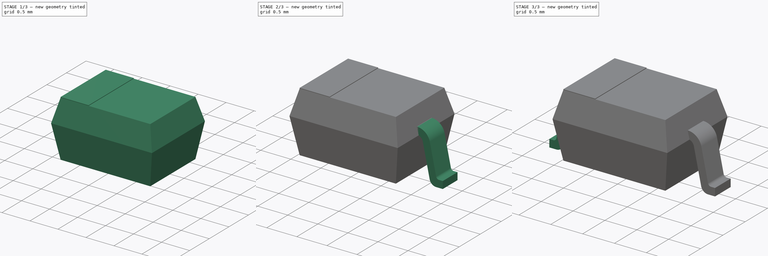
[diagram: build sequence overview — one tinted view per stage of 3, left to right]
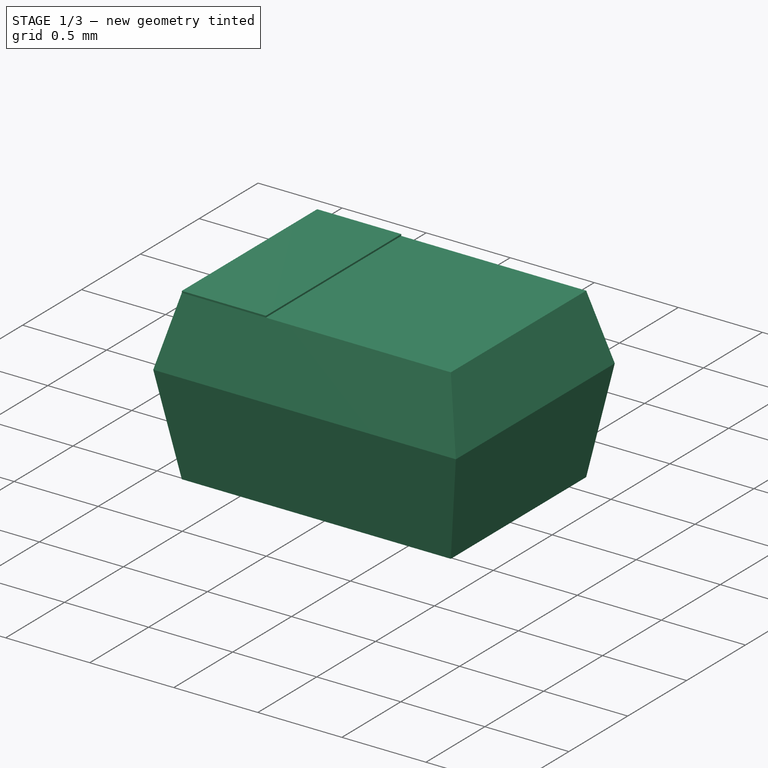
[diagram: stage 1 of 3 — iso view after this stage's code; geometry added in this stage tinted green]
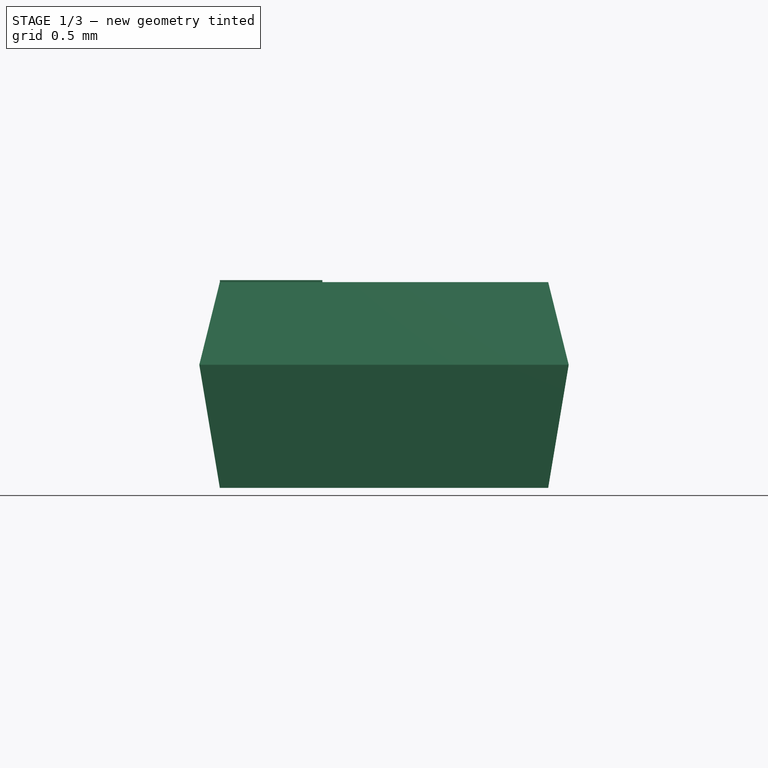
[diagram: stage 1 of 3 — front view after this stage's code; geometry added in this stage tinted green]
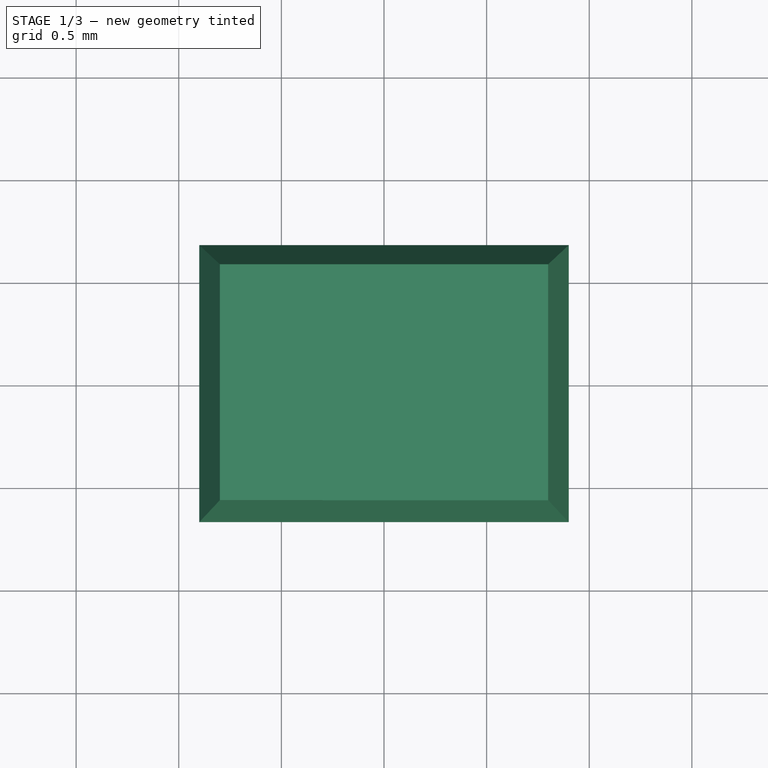
[diagram: stage 1 of 3 — top view after this stage's code; geometry added in this stage tinted green]
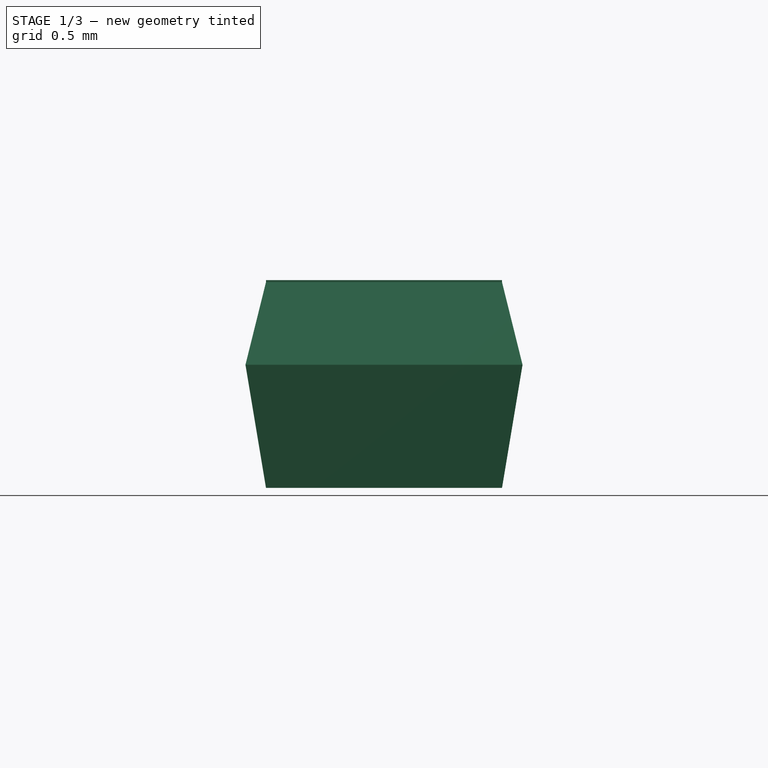
[diagram: stage 1 of 3 — right view after this stage's code; geometry added in this stage tinted green]
FCSTD DOCUMENT  (FreeCAD 0.16R6703 (Git))
Label: SOD-323
License: All rights reserved
LicenseURL: http://en.wikipedia.org/wiki/All_rights_reserved
objects: Sketcher::SketchObject×5, PartDesign::Pad×2, App::DocumentObjectGroup×2, Part::FeaturePython×2, Part::Feature×1, Part::Loft×1, Part::Mirroring×1, Part::MultiFuse×1
note: 15 computed .brp shape members not serialized (recipe doc carries the construction recipe); baked Part::Feature solids carry a one-line shape summary decoded from their .brp

FEATURE [Part::Feature] Part__Feature383  label="SOD-324"
  Placement = pos=(1.1e-11,1e-11,0) rot=(0,0,1;0rad)
  shape: bbox 2.609 x 1.359 x 1.114 mm, 33 faces (baked)
FEATURE [Sketcher::SketchObject] Sketch  label="bottom-sketch"
  Placement = pos=(1.0055e-07,-1.39911e-07,0.1) rot=(0,0,1;0rad)
  sketch-geometry (4):
    g0: LineSegment StartX=-0.8 StartY=0.575 StartZ=0 EndX=0.8 EndY=0.575 EndZ=0
    g1: LineSegment StartX=0.8 StartY=0.575 StartZ=0 EndX=0.8 EndY=-0.575 EndZ=0
    g2: LineSegment StartX=0.8 StartY=-0.575 StartZ=0 EndX=-0.8 EndY=-0.575 EndZ=0
    g3: LineSegment StartX=-0.8 StartY=-0.575 StartZ=0 EndX=-0.8 EndY=0.575 EndZ=0
  constraints (11):
    c: Coincident(g0,g1)
    c: Coincident(g1,g2)
    c: Coincident(g2,g3)
    c: Coincident(g3,g0)
    c: Horizontal(g0)
    c: Horizontal(g2)
    c: Vertical(g1)
    c: Vertical(g3)
    c: Symmetric(g0,g1,g-1)
    c: DistanceX(g0,g0) = 1.6
    c: DistanceY(g1,g1) = 1.15
FEATURE [Sketcher::SketchObject] Sketch001  label="top-sketch"
  Placement = pos=(1.00479e-07,-1.39881e-07,1.1025) rot=(0,0,1;0rad)
  sketch-geometry (4):
    g0: LineSegment StartX=-0.8 StartY=0.575 StartZ=0 EndX=0.8 EndY=0.575 EndZ=0
    g1: LineSegment StartX=0.8 StartY=0.575 StartZ=0 EndX=0.8 EndY=-0.575 EndZ=0
    g2: LineSegment StartX=0.8 StartY=-0.575 StartZ=0 EndX=-0.8 EndY=-0.575 EndZ=0
    g3: LineSegment StartX=-0.8 StartY=-0.575 StartZ=0 EndX=-0.8 EndY=0.575 EndZ=0
  constraints (11):
    c: Coincident(g0,g1)
    c: Coincident(g1,g2)
    c: Coincident(g2,g3)
    c: Coincident(g3,g0)
    c: Horizontal(g0)
    c: Horizontal(g2)
    c: Vertical(g1)
    c: Vertical(g3)
    c: Symmetric(g0,g1,g-1)
    c: DistanceX(g0,g0) = 1.6
    c: DistanceY(g1,g1) = 1.15
FEATURE [Sketcher::SketchObject] Sketch002  label="middle-sketch"
  Placement = pos=(1.17933e-07,-1.57386e-07,0.7) rot=(0,0,1;0rad)
  sketch-geometry (4):
    g0: LineSegment StartX=-0.9 StartY=0.675 StartZ=0 EndX=0.9 EndY=0.675 EndZ=0
    g1: LineSegment StartX=0.9 StartY=0.675 StartZ=0 EndX=0.9 EndY=-0.675 EndZ=0
    g2: LineSegment StartX=0.9 StartY=-0.675 StartZ=0 EndX=-0.9 EndY=-0.675 EndZ=0
    g3: LineSegment StartX=-0.9 StartY=-0.675 StartZ=0 EndX=-0.9 EndY=0.675 EndZ=0
  constraints (11):
    c: Coincident(g0,g1)
    c: Coincident(g1,g2)
    c: Coincident(g2,g3)
    c: Coincident(g3,g0)
    c: Horizontal(g0)
    c: Horizontal(g2)
    c: Vertical(g1)
    c: Vertical(g3)
    c: Symmetric(g0,g1,g-1)
    c: DistanceX(g0,g0) = 1.8
    c: DistanceY(g1,g1) = 1.35
FEATURE [Part::Loft] Loft  label="body-loft"
  Closed = false
  Ruled = true
  Sections = -> [Sketch,Sketch002,Sketch001]
  Solid = true
FEATURE [Sketcher::SketchObject] Sketch003
  ExternalGeometry = -> [Loft]
  Placement = pos=(0,0,1.1025) rot=(0,0,1;0rad)
  Support = -> Loft [Face10]
  sketch-geometry (4):
    g0: LineSegment StartX=-0.8 StartY=0.575 StartZ=0 EndX=-0.3 EndY=0.575 EndZ=0
    g1: LineSegment StartX=-0.3 StartY=0.575 StartZ=0 EndX=-0.3 EndY=-0.575 EndZ=0
    g2: LineSegment StartX=-0.3 StartY=-0.575 StartZ=0 EndX=-0.8 EndY=-0.575 EndZ=0
    g3: LineSegment StartX=-0.8 StartY=-0.575 StartZ=0 EndX=-0.8 EndY=0.575 EndZ=0
  constraints (11):
    c: Coincident(g0,g1)
    c: Coincident(g1,g2)
    c: Coincident(g2,g3)
    c: Coincident(g3,g0)
    c: Horizontal(g0)
    c: Horizontal(g2)
    c: Vertical(g1)
    c: Vertical(g3)
    c: Coincident(g0,g-3)
    c: Symmetric(g0,g1,g-1)
    c: DistanceX(g0,g0) = 0.5
FEATURE [PartDesign::Pad] Pad  label="mark"
  Length = 0.01
  Length2 = 100
  Sketch = -> Sketch003
  Type = 0
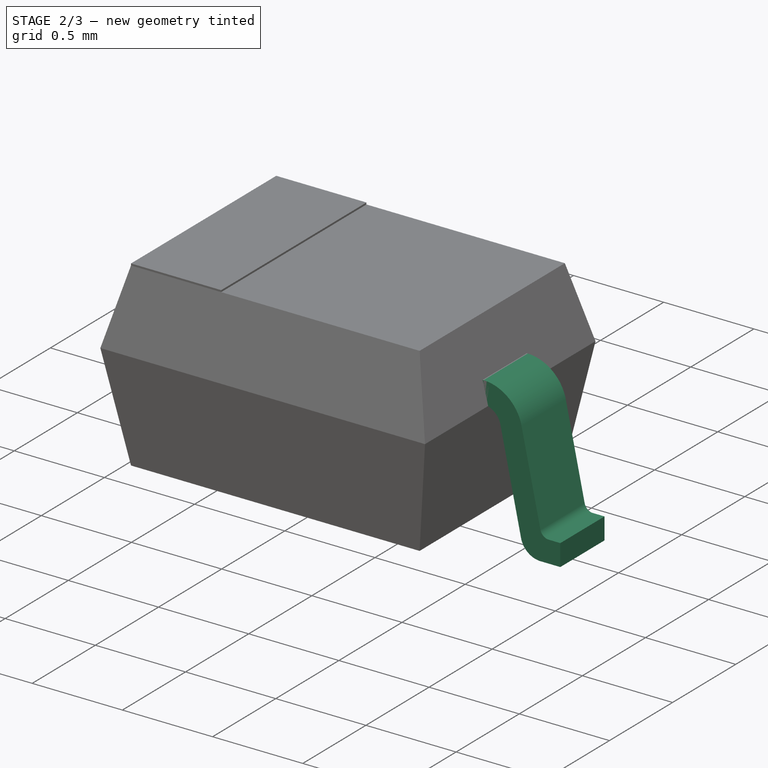
[diagram: stage 2 of 3 — iso view after this stage's code; geometry added in this stage tinted green]
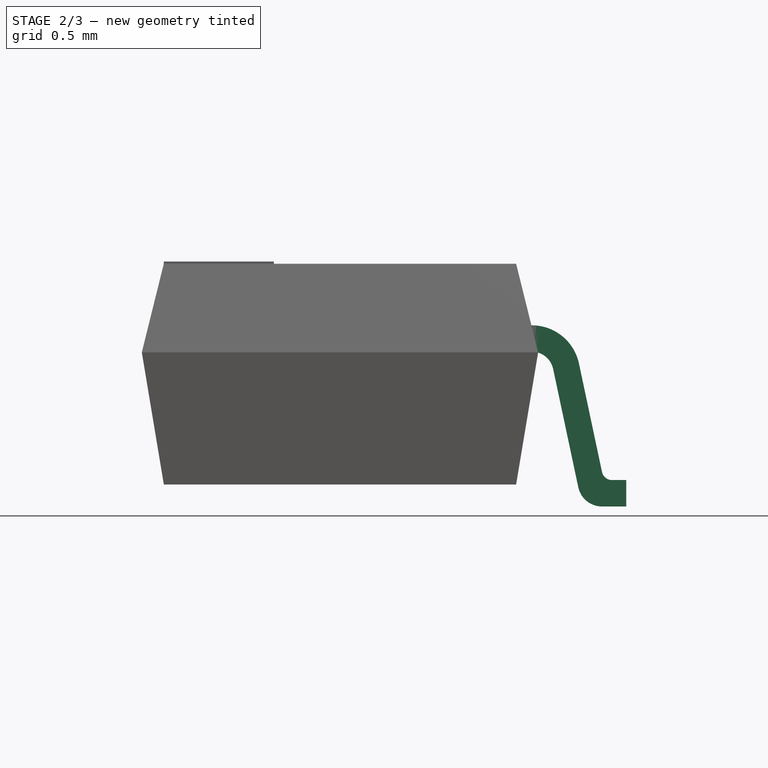
[diagram: stage 2 of 3 — front view after this stage's code; geometry added in this stage tinted green]
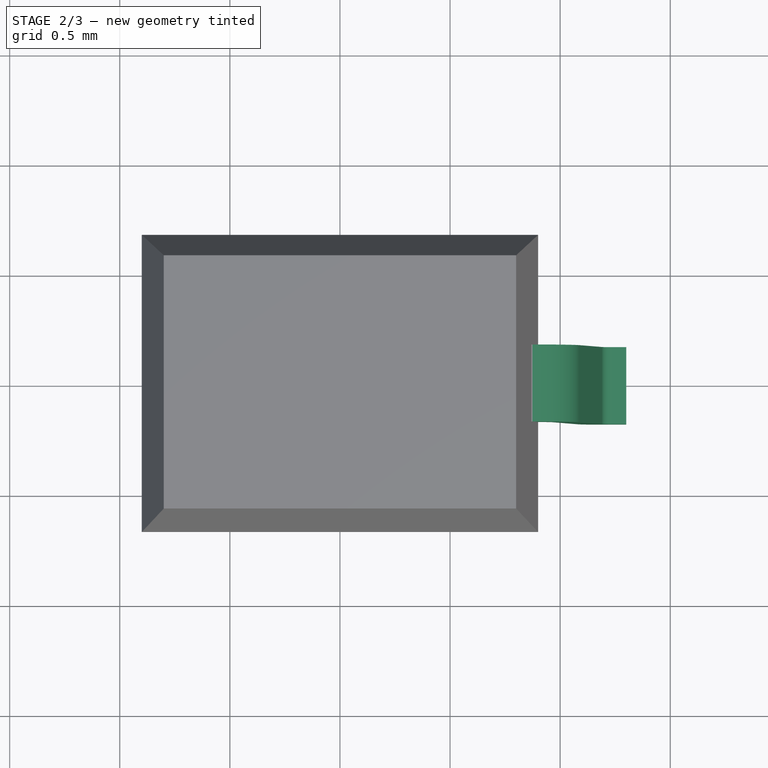
[diagram: stage 2 of 3 — top view after this stage's code; geometry added in this stage tinted green]
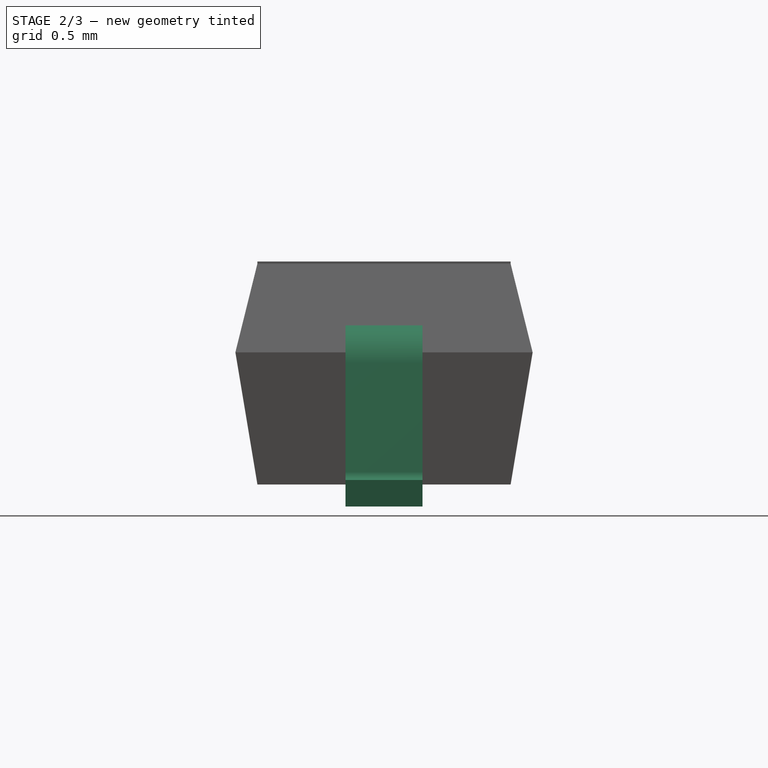
[diagram: stage 2 of 3 — right view after this stage's code; geometry added in this stage tinted green]
FEATURE [App::DocumentObjectGroup] Group001  label="body-src"
  Group = -> [Sketch,Sketch001,Sketch002,Loft,Pad]
FEATURE [Sketcher::SketchObject] Sketch004  label="pad-sketch"
  Placement = pos=(0,0,0) rot=(-1,0,0;4.71239rad)
  sketch-geometry (13):
    g0: LineSegment StartX=-0.847201 StartY=0.7 StartZ=0 EndX=-0.818214 EndY=0.81626 EndZ=0
    g1: LineSegment StartX=-1.3 StartY=0 StartZ=0 EndX=-1.3 EndY=0.12 EndZ=0
    g2: LineSegment StartX=-1.3 StartY=0.12 StartZ=0 EndX=-1.23597 EndY=0.12 EndZ=0
    g3: LineSegment StartX=-1.3 StartY=0 StartZ=0 EndX=-1.19 EndY=0 EndZ=0
    g4: LineSegment [constr] StartX=-1.23597 StartY=0.12 StartZ=0 EndX=-1.23597 EndY=0 EndZ=0
    g5: LineSegment StartX=-1.0824 StartY=0.0871297 StartZ=0 EndX=-0.968206 EndY=0.624386 EndZ=0
    g6: ArcOfCircle CenterX=-1.23597 CenterY=0.167 CenterZ=0 NormalX=0 NormalY=0 NormalZ=1 Radius=0.047 StartAngle=4.71239 EndAngle=6.07375
    g7: LineSegment [constr] StartX=-1.19 StartY=0.11 StartZ=0 EndX=-1.19 EndY=0 EndZ=0
    g8: ArcOfCircle CenterX=-1.19 CenterY=0.11 CenterZ=0 NormalX=0 NormalY=0 NormalZ=1 Radius=0.11 StartAngle=4.71239 EndAngle=6.07375
    g9: LineSegment StartX=-1.19 StartY=0.157228 StartZ=0 EndX=-1.08541 EndY=0.649298 EndZ=0
    g10: LineSegment [constr] StartX=-1.08541 StartY=0.649298 StartZ=0 EndX=-0.968206 EndY=0.624386 EndZ=0
    g11: ArcOfCircle CenterX=-0.871193 CenterY=0.603765 CenterZ=0 NormalX=0 NormalY=0 NormalZ=1 Radius=0.219 StartAngle=1.32646 EndAngle=2.93215
    g12: ArcOfCircle CenterX=-0.871193 CenterY=0.603765 CenterZ=0 NormalX=0 NormalY=0 NormalZ=1 Radius=0.0991807 StartAngle=1.32647 EndAngle=2.93215
  constraints (40):
    c: Angle(g-1,g0) = 1.32645
    c: PointOnObject(g1,g-1)
    c: Vertical(g1)
    c: DistanceY(g1,g1) = 0.12
    c: Coincident(g2,g1)
    c: Horizontal(g2)
    c: Coincident(g3,g1)
    c: PointOnObject(g3,g-1)
    c: PointOnObject(g4,g3)
    c: Vertical(g4)
    c: Coincident(g4,g2)
    c: Angle(g-1,g5) = 1.36136
    c: Coincident(g6,g2)
    c: PointOnObject(g6,g4)
    c: Radius(g6) = 0.047
    c: Coincident(g7,g3)
    c: Vertical(g7)
    c: Coincident(g8,g7)
    c: Coincident(g8,g3)
    c: Coincident(g8,g5)
    c: PointOnObject(g6,g7)
    c: DistanceX(g3,g3) = 0.11
    c: Radius(g8) = 0.11
    c: Coincident(g9,g6)
    c: Parallel(g9,g5)
    c: Tangent(g6,g9)
    c: Tangent(g8,g5)
    c: Coincident(g10,g5)
    c: Coincident(g10,g9)
    c: Perpendicular(g5,g10)
    c: Coincident(g11,g9)
    c: PointOnObject(g11,g10)
    c: DistanceX(g1,g-1) = 1.3
    c: Radius(g11) = 0.219
    c: Coincident(g0,g11)
    c: DistanceY(g-1,g0) = 0.7
    c: Equal(g10,g0)
    c: Coincident(g12,g11)
    c: Coincident(g12,g0)
    c: Coincident(g12,g5)
FEATURE [PartDesign::Pad] Pad001  label="left-pin"
  Length = 0.35
  Length2 = 100
  Midplane = true
  Placement = pos=(0,0,0) rot=(-1,0,0;4.71239rad)
  Sketch = -> Sketch004
  Type = 0
FEATURE [Part::Mirroring] Part__Mirroring  label="left-pin (Mirror #1)"
  Base = (0,0,0)
  Normal = (1,0,0)
  Source = -> Pad001
FEATURE [Part::FeaturePython] Clone  label="body"  # Draft clone (typed FeaturePython)
  Objects = -> [Pad]
  Scale = (1,1,1)
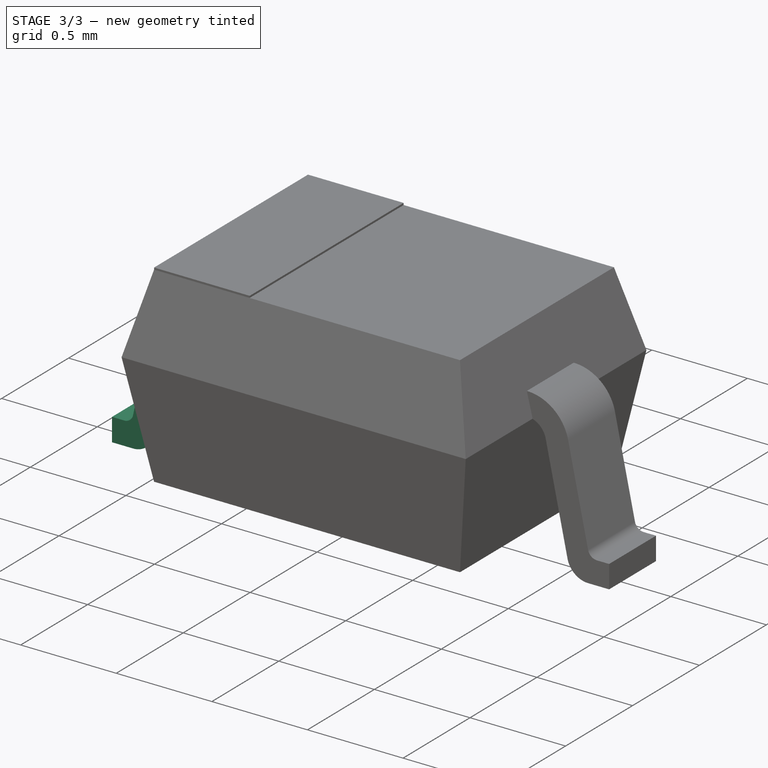
[diagram: stage 3 of 3 — iso view after this stage's code; geometry added in this stage tinted green]
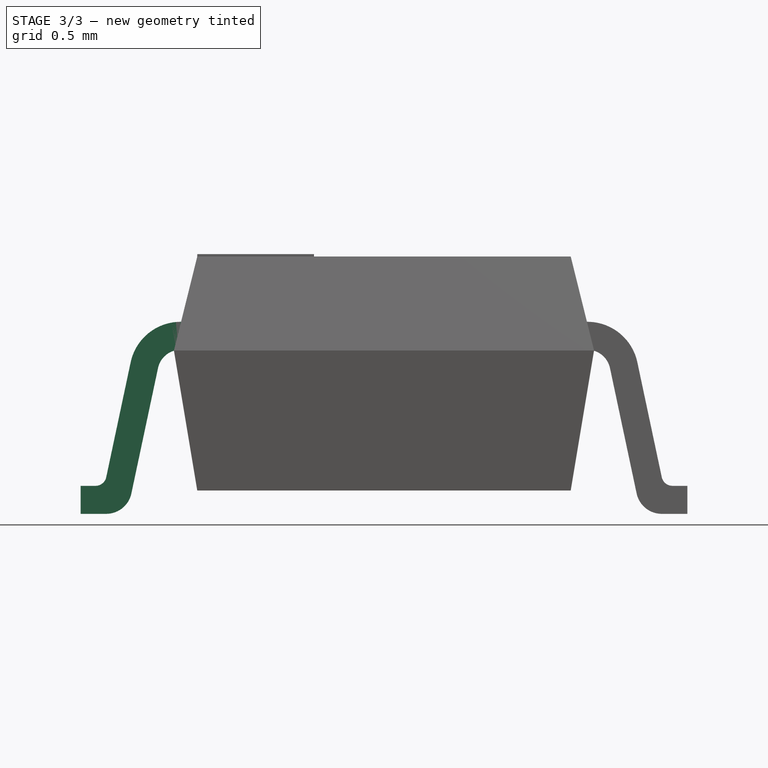
[diagram: stage 3 of 3 — front view after this stage's code; geometry added in this stage tinted green]
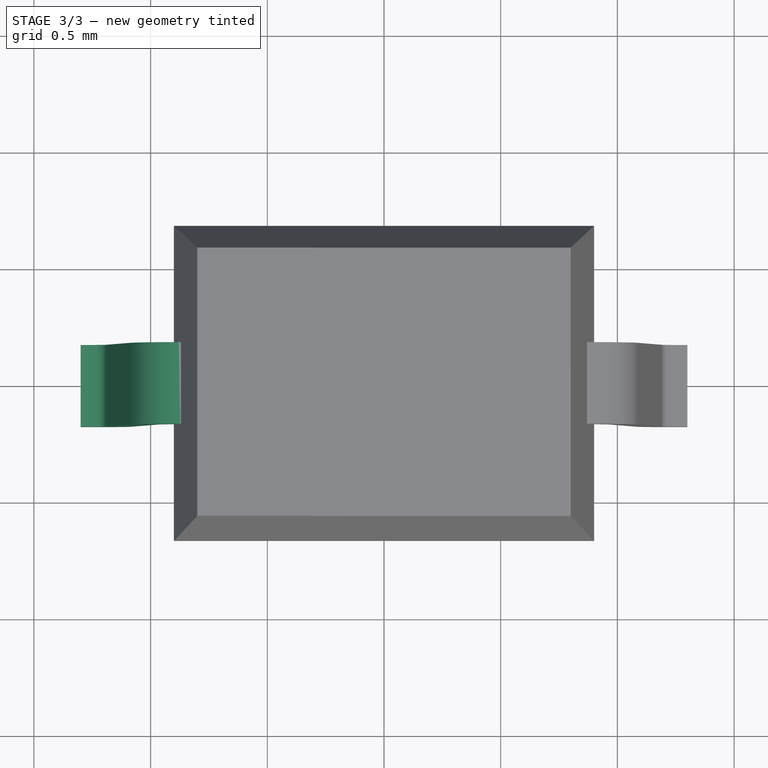
[diagram: stage 3 of 3 — top view after this stage's code; geometry added in this stage tinted green]
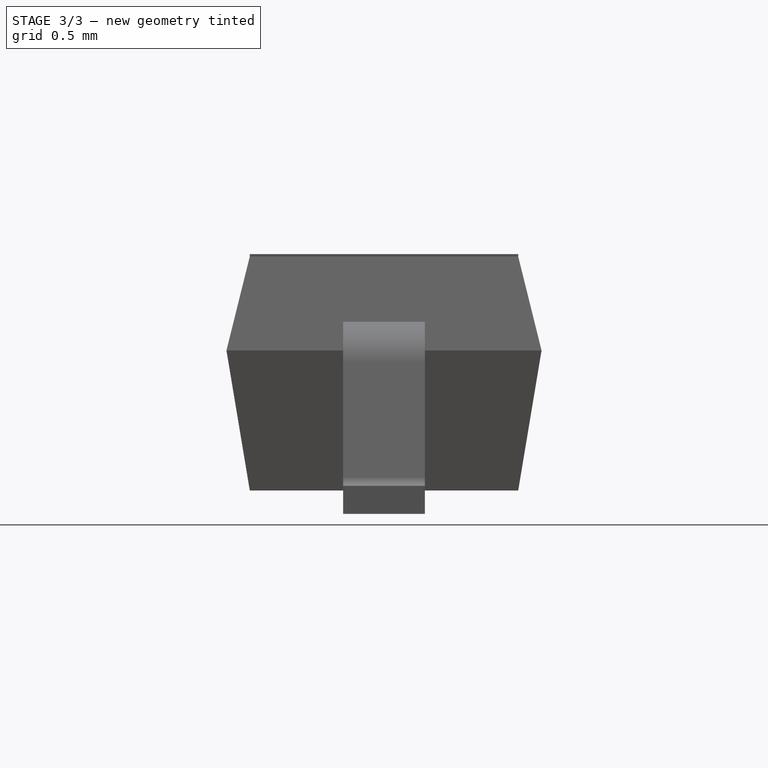
[diagram: stage 3 of 3 — right view after this stage's code; geometry added in this stage tinted green]
FEATURE [Part::MultiFuse] Fusion  label="pins-src"
  Shapes = -> [Part__Mirroring,Pad001]
FEATURE [App::DocumentObjectGroup] Group  label="src"
  Group = -> [Group001,Fusion]
FEATURE [Part::FeaturePython] Clone001  label="pins001"  # Draft clone (typed FeaturePython)
  Objects = -> [Fusion]
  Scale = (1,1,1)
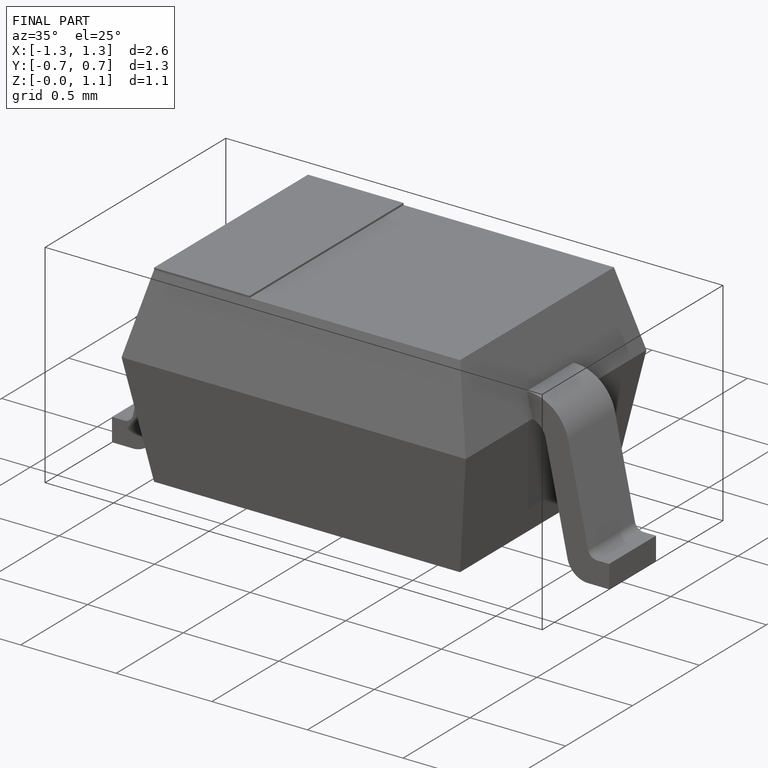
[diagram: finished part — iso view with bounding-box wireframe]
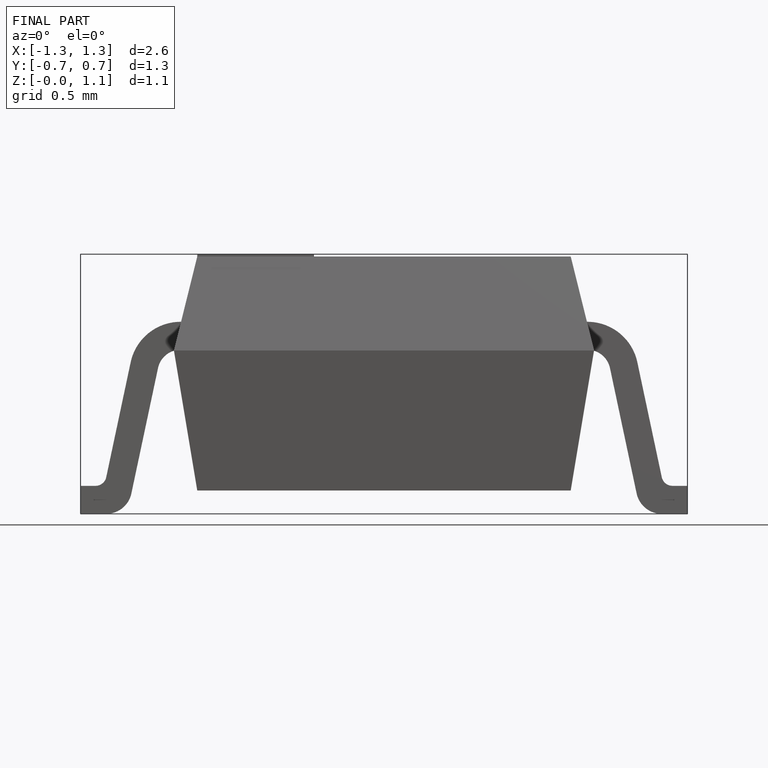
[diagram: finished part — front view with bounding-box wireframe]
